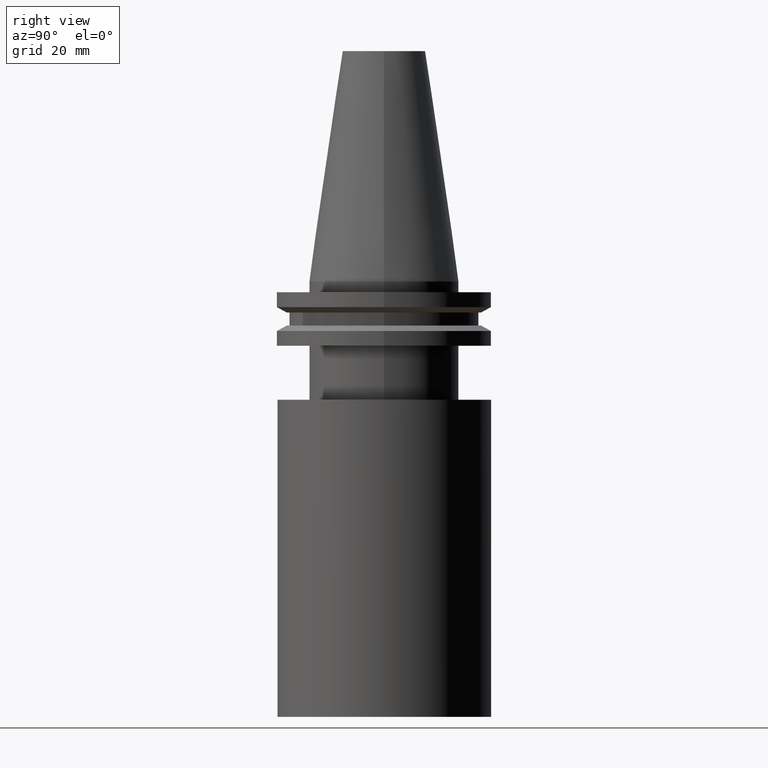
[diagram: clean part render]
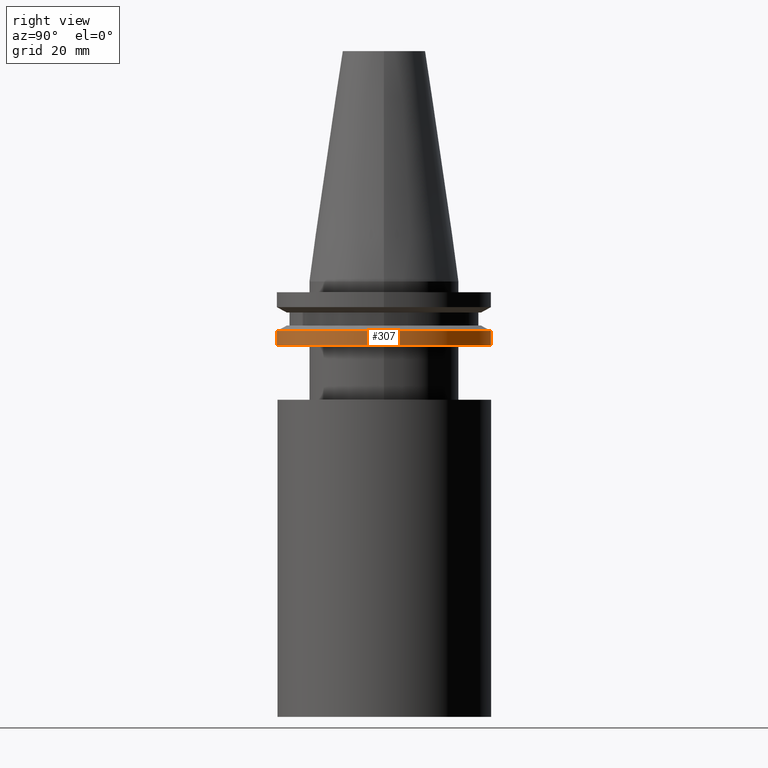
[diagram: same view with one face highlighted and labeled with its STEP entity id]
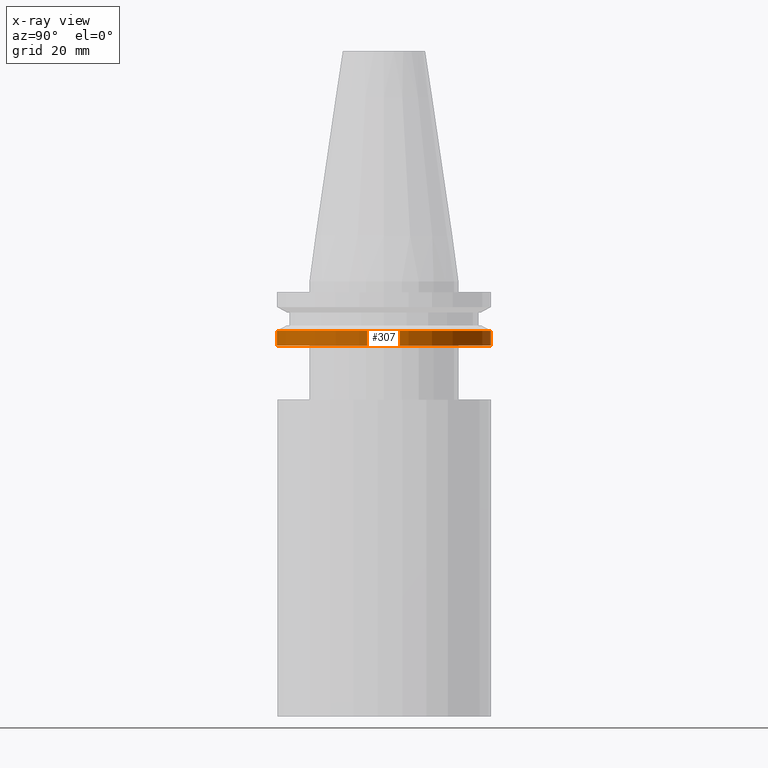
[diagram: x-ray of the same camera — body ghosted, the highlighted face saturated]
A machine part, right view. The second image highlights one B-rep face of the part: STEP entity #307.
The next image is the same camera in x-ray: the body ghosted, the highlighted face saturated — about 0% of this face is hidden behind the body in this view.
In plain terms, the highlighted cylindrical surface (bore or boss wall) has radius 31.75 mm, axis along (-0, -0, 1).
Its self-contained STEP definition (entity closure, byte-faithful):
#9 = AXIS2_PLACEMENT_3D ( 'NONE', #383, #196, #69 ) ;
#32 = CYLINDRICAL_SURFACE ( 'NONE', #209, 31.75000000000000000 ) ;
#62 = FACE_OUTER_BOUND ( 'NONE', #172, .T. ) ;
#68 = EDGE_CURVE ( 'NONE', #91, #91, #393, .T. ) ;
#69 = DIRECTION ( 'NONE',  ( 1.000000000000000000, 0.000000000000000000, 0.000000000000000000 ) ) ;
#86 = CARTESIAN_POINT ( 'NONE',  ( 31.75000000000000000, 0.000000000000000000, -14.65472339340266572 ) ) ;
#91 = VERTEX_POINT ( 'NONE', #86 ) ;
#124 = EDGE_CURVE ( 'NONE', #331, #331, #192, .T. ) ;
#160 = DIRECTION ( 'NONE',  ( -0.000000000000000000, -0.000000000000000000, 1.000000000000000000 ) ) ;
#164 = EDGE_LOOP ( 'NONE', ( #165 ) ) ;
#165 = ORIENTED_EDGE ( 'NONE', *, *, #124, .T. ) ;
#172 = EDGE_LOOP ( 'NONE', ( #310 ) ) ;
#192 = CIRCLE ( 'NONE', #201, 31.74999999999999289 ) ;
#196 = DIRECTION ( 'NONE',  ( -0.000000000000000000, -0.000000000000000000, 1.000000000000000000 ) ) ;
#201 = AXIS2_PLACEMENT_3D ( 'NONE', #231, #259, #352 ) ;
#209 = AXIS2_PLACEMENT_3D ( 'NONE', #377, #160, #275 ) ;
#212 = CARTESIAN_POINT ( 'NONE',  ( 31.74999999999999289, 0.000000000000000000, -19.04999999999999716 ) ) ;
#231 = CARTESIAN_POINT ( 'NONE',  ( 0.000000000000000000, 0.000000000000000000, -19.04999999999999716 ) ) ;
#259 = DIRECTION ( 'NONE',  ( -0.000000000000000000, -0.000000000000000000, 1.000000000000000000 ) ) ;
#275 = DIRECTION ( 'NONE',  ( 1.000000000000000000, 0.000000000000000000, 0.000000000000000000 ) ) ;
#304 = FACE_OUTER_BOUND ( 'NONE', #164, .T. ) ;
#307 = ADVANCED_FACE ( 'NONE', ( #62, #304 ), #32, .T. ) ;
#310 = ORIENTED_EDGE ( 'NONE', *, *, #68, .F. ) ;
#331 = VERTEX_POINT ( 'NONE', #212 ) ;
#352 = DIRECTION ( 'NONE',  ( 1.000000000000000000, 0.000000000000000000, 0.000000000000000000 ) ) ;
#377 = CARTESIAN_POINT ( 'NONE',  ( 0.000000000000000000, 0.000000000000000000, 68.25000000000000000 ) ) ;
#383 = CARTESIAN_POINT ( 'NONE',  ( 0.000000000000000000, 0.000000000000000000, -14.65472339340266572 ) ) ;
#393 = CIRCLE ( 'NONE', #9, 31.75000000000000000 ) ;